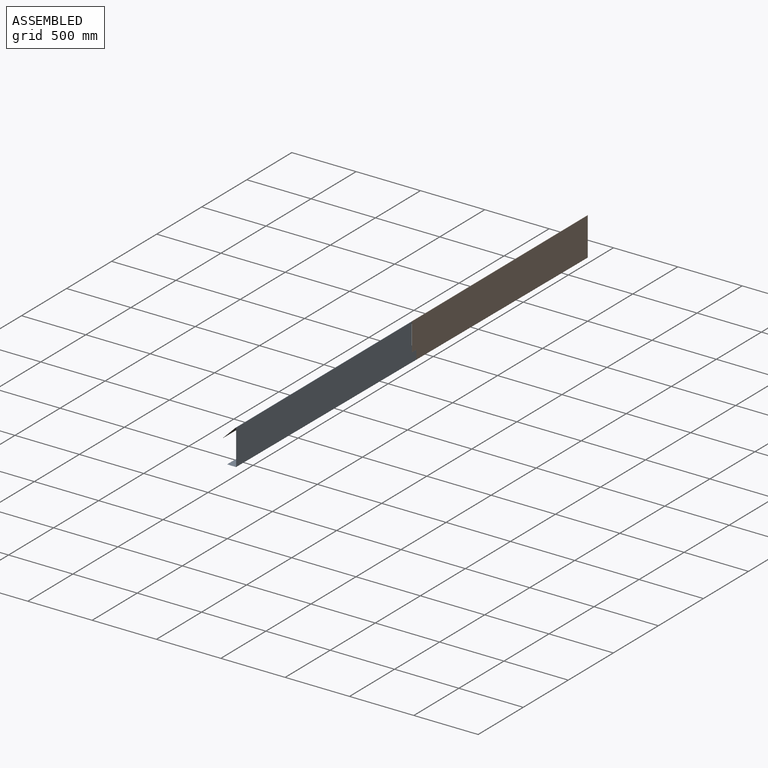
[diagram: assembled view]
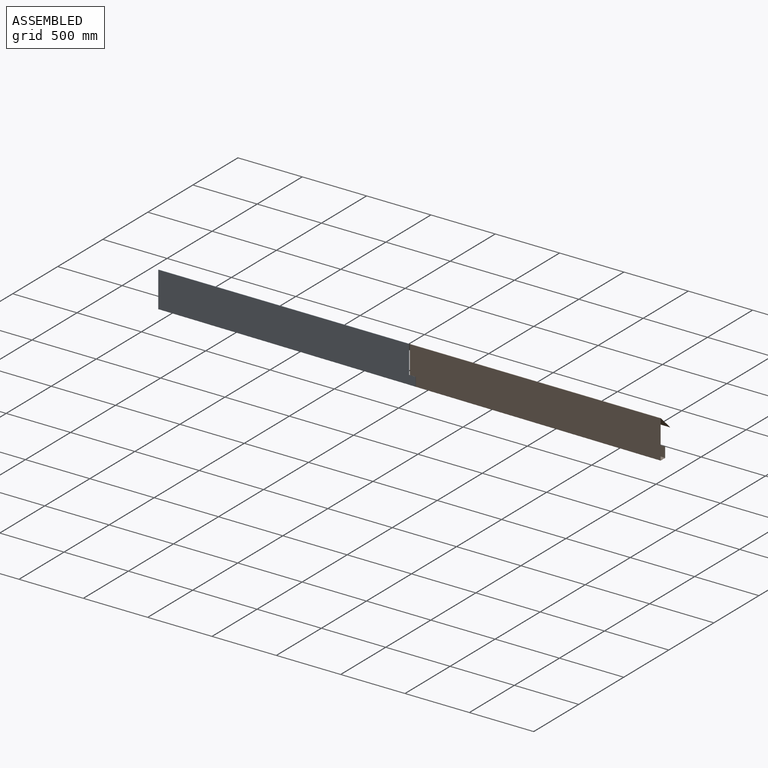
[diagram: assembled view, second angle]
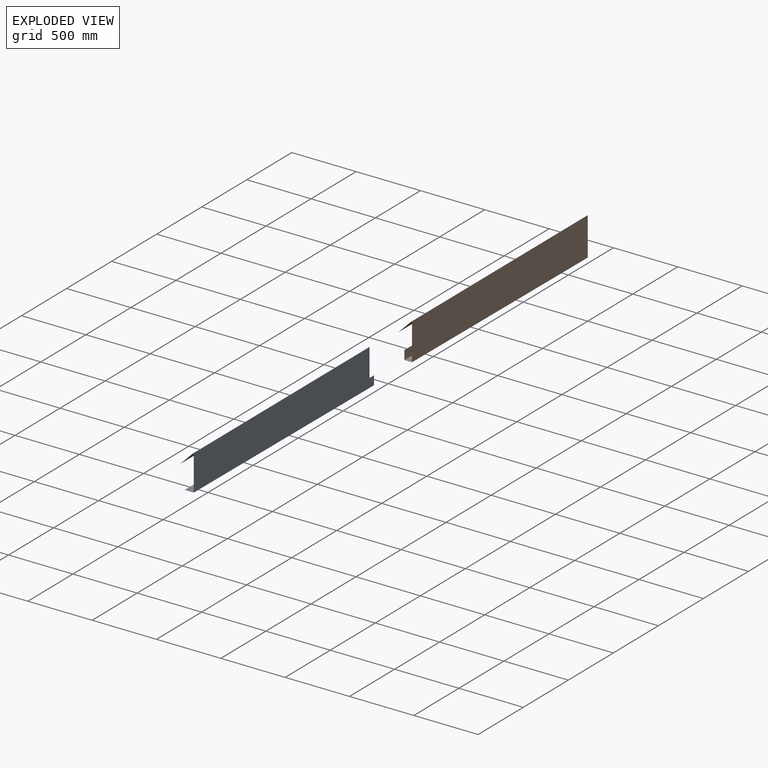
[diagram: exploded view]
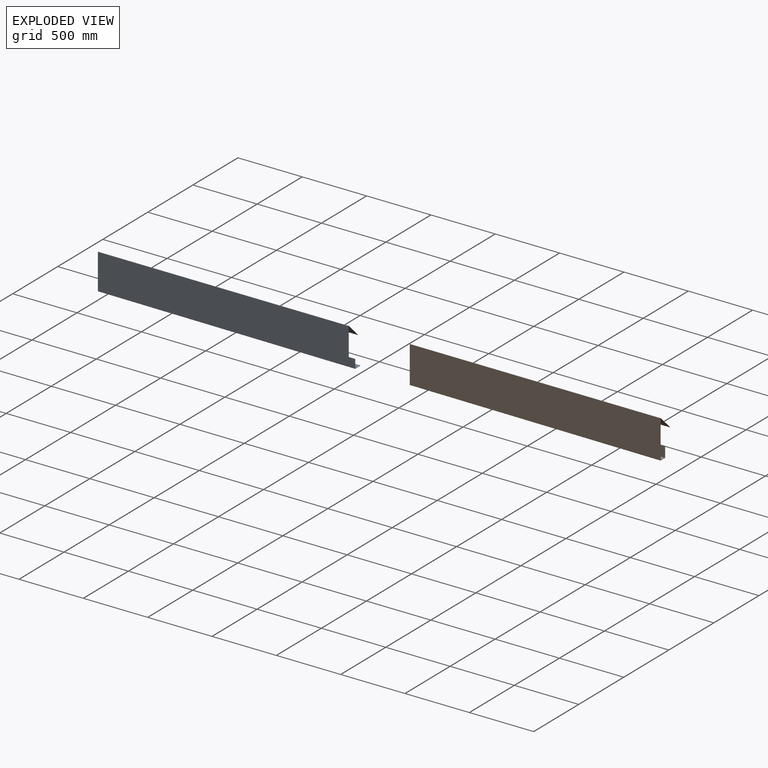
[diagram: exploded view, second angle]
ASSEMBLY  parts=2 mates=2
PART A: 17 faces, bbox 106.1x2000x288 mm
  f0: plane 2000x285.22mm, normal (1,0,0), area 549612.3mm2, adj f5,f7,f8,f11,f15,f16
  f1: plane 2000x285.22mm, normal (-1,0,0), area 549612.3mm2, adj f6,f7,f8,f14,f15,f16
  f2: plane 1950x0.35mm, normal (-0.71,0,-0.71), area 975mm2, adj f3,f4,f7,f16
  f3: plane 1950x103.68mm, normal (-0.71,0,0.71), area 285909.2mm2, adj f2,f5,f7,f16
  f4: plane 1950x103.68mm, normal (0.71,0,-0.71), area 285909.2mm2, adj f2,f6,f7,f16
  f5: cylinder r=1.4mm len=1950mm, axis (0,1,0), area 6432.4mm2, adj f0,f3,f7,f16
  f6: cylinder r=0.9mm len=1950mm, axis (0,1,0), area 4135.1mm2, adj f1,f4,f7,f16
  f7: plane 278.02x106.07mm, normal (0,-1,0), area 247mm2, adj f0,f1,f2,f3,f4,f5,f6,f9
  f8: plane 70x59.5mm, normal (0,1,0), area 64mm2, adj f0,f1,f9,f10,f11,f12,f13,f14
  f9: plane 2000x66.7mm, normal (0,0,-1), area 123401.4mm2, adj f7,f8,f10,f11
  f10: cylinder r=1.4mm len=2000.03mm, axis (0,1,0), area 4398.3mm2, adj f7,f8,f9,f13
  f11: cylinder r=1.4mm len=2000.01mm, axis (0,-1,0), area 4398.4mm2, adj f0,f7,f8,f9
  f12: plane 2000x67.2mm, normal (0,0,1), area 124401.5mm2, adj f7,f8,f13,f14
  f13: cylinder r=0.9mm len=2000.02mm, axis (0,1,0), area 2827.5mm2, adj f7,f8,f10,f12
  f14: cylinder r=0.9mm len=2000.01mm, axis (0,-1,0), area 2827.5mm2, adj f1,f7,f8,f12
  f15: plane 50x0.5mm, normal (0,0,1), area 25mm2, adj f0,f1,f8,f16
  f16: plane 218.02x106.07mm, normal (0,1,0), area 183mm2, adj f0,f1,f2,f3,f4,f5,f6,f15
PART B: 25 faces, bbox 106.1x1950x298 mm
  f0: plane 1950x0.35mm, normal (-0.71,0,-0.71), area 975mm2, adj f1,f2,f16,f24
  f1: plane 1950x103.68mm, normal (-0.71,0,0.71), area 285909.2mm2, adj f0,f14,f16,f24
  f2: plane 1950x103.68mm, normal (0.71,0,-0.71), area 285909.2mm2, adj f0,f15,f16,f24
  f3: plane 1950x295.22mm, normal (1,0,0), area 566175.5mm2, adj f12,f14,f17,f18,f24
  f4: plane 1950x295.22mm, normal (-1,0,0), area 566175.5mm2, adj f13,f15,f17,f18,f24
  f5: plane 1950x10.25mm, normal (0,0,1), area 975mm2, adj f6,f7,f19,f24
  f6: plane 1950x78.6mm, normal (-1,0,0), area 143765.5mm2, adj f5,f10,f19,f24
  f7: plane 1950x78.6mm, normal (1,0,0), area 143765.3mm2, adj f5,f11,f19,f24
  f8: plane 1949.98x56.95mm, normal (0,0,-1), area 101541mm2, adj f10,f12,f20,f24
  f9: plane 1949.98x56.95mm, normal (0,0,1), area 101541.1mm2, adj f11,f13,f20,f24
  f10: cylinder r=1.4mm len=1950.01mm, axis (0,1,0), area 4288.4mm2, adj f6,f8,f21,f24
  f11: cylinder r=0.9mm len=1950mm, axis (0,1,0), area 2756.8mm2, adj f7,f9,f21,f24
  f12: cylinder r=1.4mm len=1949.76mm, axis (0,-1,0), area 4287.8mm2, adj f3,f8,f22,f24
  f13: cylinder r=0.9mm len=1949.76mm, axis (0,-1,0), area 2756.5mm2, adj f4,f9,f22,f24
  f14: cylinder r=1.4mm len=1950mm, axis (0,1,0), area 6432.4mm2, adj f1,f3,f23,f24
  f15: cylinder r=0.9mm len=1950mm, axis (0,1,0), area 4135.1mm2, adj f2,f4,f23,f24
  f16: plane 104.03x104.03mm, normal (0,1,0), area 73.3mm2, adj f0,f1,f2,f23
  f17: plane 295.22x0.5mm, normal (0,1,0), area 147.6mm2, adj f3,f4,f18,f23
  f18: plane 0.5x0.25mm, normal (0,0,-1), area 0.1mm2, adj f3,f4,f17,f22
  f19: plane 78.61x0.51mm, normal (0,1,0), area 39.3mm2, adj f5,f6,f7,f21
  f20: plane 47.2x0.5mm, normal (0,1,0), area 23.6mm2, adj f8,f9,f21,f22
  f21: plane 1.41x1.41mm, normal (0,1,0), area 0.9mm2, adj f10,f11,f19,f20
  f22: plane 1.4x1.4mm, normal (0,1,0), area 0.9mm2, adj f12,f13,f18,f20
  f23: plane 2.39x1.4mm, normal (0,1,0), area 1.4mm2, adj f14,f15,f16,f17
  f24: plane 288.27x106.07mm, normal (0,-1,0), area 282.1mm2, adj f0,f1,f2,f3,f4,f5,f6,f7
PLACE A t=(5.04,2020.6,-151.6)mm
PLACE B t=(4.54,1923.94,-151.62)mm
MATE planar A.f9 <-> B.f9  axis (0,0,-1) through (22.4,-1006.41,-299.4)mm
MATE planar B.f3 <-> A.f1  axis (1,0,0) through (54.22,954.39,-163.12)mm
